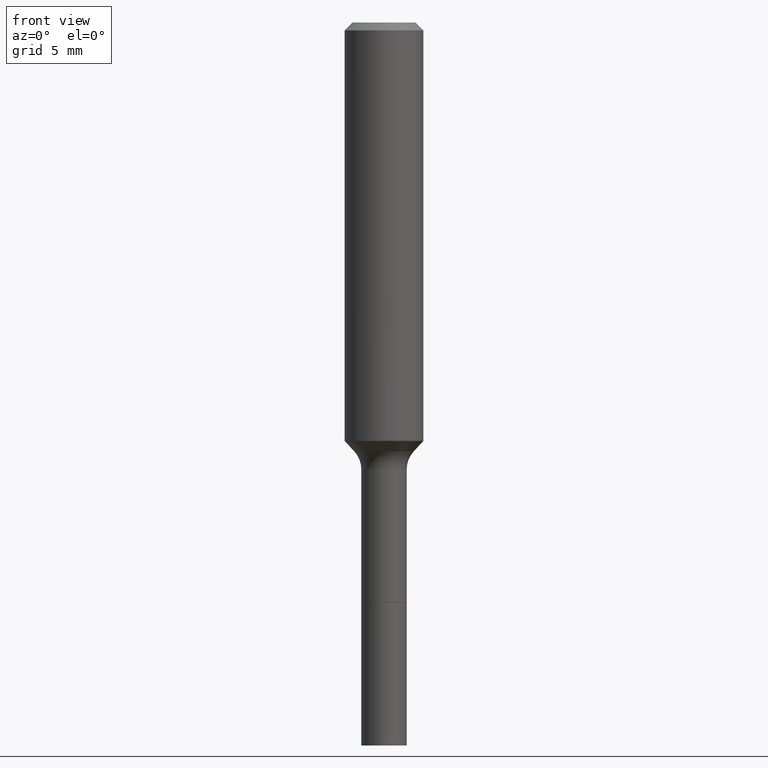
[diagram: clean part render]
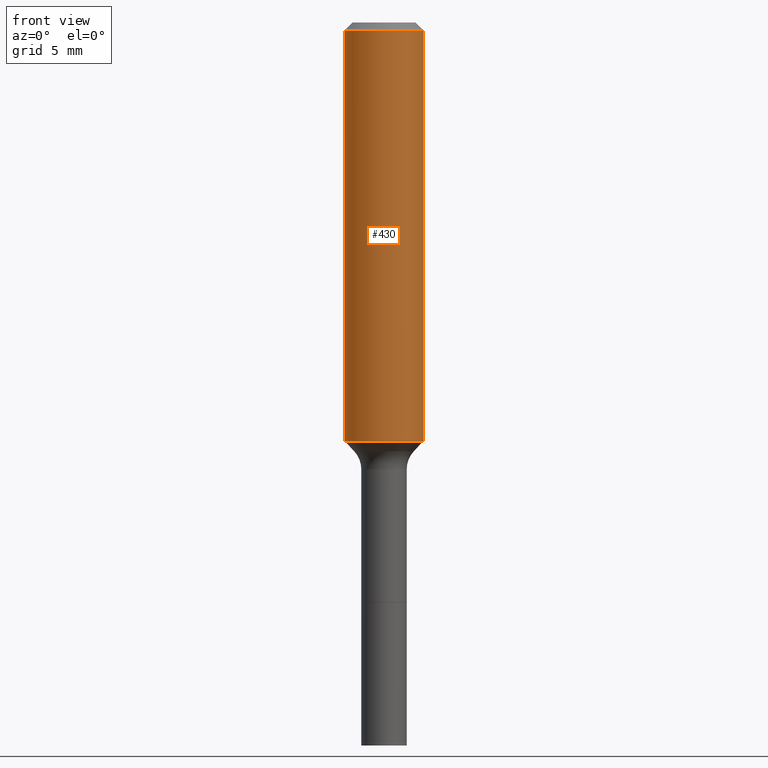
[diagram: same view with one face highlighted and labeled with its STEP entity id]
A machine part, front view. The second image highlights one B-rep face of the part: STEP entity #430.
In plain terms, the highlighted cylindrical surface (partial cylindrical patch) has radius 2.9997 mm, axis along (-0, 0, 1).
Its self-contained STEP definition (entity closure, byte-faithful):
#7 = DIRECTION ( 'NONE',  ( 1.000000000000000000, -6.982962677686264344E-15, 0.000000000000000000 ) ) ;
#18 = CARTESIAN_POINT ( 'NONE',  ( 0.1180999999999999966, -9.071566814582237199E-16, -0.02362000000000014435 ) ) ;
#21 = VERTEX_POINT ( 'NONE', #48 ) ;
#32 = ORIENTED_EDGE ( 'NONE', *, *, #78, .F. ) ;
#46 = ORIENTED_EDGE ( 'NONE', *, *, #502, .F. ) ;
#48 = CARTESIAN_POINT ( 'NONE',  ( -0.1180999999999999966, -1.389778401389283023E-15, -0.02362000000000014435 ) ) ;
#78 = EDGE_CURVE ( 'NONE', #179, #21, #503, .T. ) ;
#99 = VERTEX_POINT ( 'NONE', #18 ) ;
#103 = CARTESIAN_POINT ( 'NONE',  ( -0.1181000000000001354, -3.536238984487769574E-15, -1.253161489578567878 ) ) ;
#135 = CIRCLE ( 'NONE', #381, 0.1180999999999999966 ) ;
#146 = DIRECTION ( 'NONE',  ( -2.445468806185136877E-29, 3.491481338843145188E-15, 1.000000000000000000 ) ) ;
#158 = ORIENTED_EDGE ( 'NONE', *, *, #382, .T. ) ;
#159 = EDGE_CURVE ( 'NONE', #404, #99, #390, .T. ) ;
#179 = VERTEX_POINT ( 'NONE', #103 ) ;
#181 = CARTESIAN_POINT ( 'NONE',  ( -0.1181000000000000660, 8.391509709326787887E-16, -5.809262341591047287E-30 ) ) ;
#199 = VECTOR ( 'NONE', #146, 39.37007874015748143 ) ;
#213 = CARTESIAN_POINT ( 'NONE',  ( 0.1181000000000001354, -5.200077847655198006E-15, -1.253161489578567878 ) ) ;
#216 = CIRCLE ( 'NONE', #337, 0.1181000000000001493 ) ;
#223 = DIRECTION ( 'NONE',  ( -2.445468806185136877E-29, 3.491481338843145188E-15, 1.000000000000000000 ) ) ;
#252 = CYLINDRICAL_SURFACE ( 'NONE', #516, 0.1181000000000000660 ) ;
#280 = CARTESIAN_POINT ( 'NONE',  ( 0.000000000000000000, 0.000000000000000000, 0.000000000000000000 ) ) ;
#318 = CARTESIAN_POINT ( 'NONE',  ( 5.776197320209328408E-31, -8.246878922347560526E-17, -0.02362000000000014435 ) ) ;
#335 = DIRECTION ( 'NONE',  ( -2.445468806185136597E-29, 3.491481338843145583E-15, 1.000000000000000000 ) ) ;
#337 = AXIS2_PLACEMENT_3D ( 'NONE', #374, #512, #7 ) ;
#359 = EDGE_LOOP ( 'NONE', ( #32, #158, #428, #46 ) ) ;
#374 = CARTESIAN_POINT ( 'NONE',  ( 3.064567331876887429E-29, -4.375389955420448954E-15, -1.253161489578567878 ) ) ;
#380 = DIRECTION ( 'NONE',  ( -2.445468806185136597E-29, 3.491481338843145583E-15, 1.000000000000000000 ) ) ;
#381 = AXIS2_PLACEMENT_3D ( 'NONE', #318, #380, #439 ) ;
#382 = EDGE_CURVE ( 'NONE', #179, #404, #216, .T. ) ;
#390 = LINE ( 'NONE', #426, #199 ) ;
#404 = VERTEX_POINT ( 'NONE', #213 ) ;
#426 = CARTESIAN_POINT ( 'NONE',  ( 0.1181000000000000660, -8.246878922347485584E-16, 5.758764772215003944E-30 ) ) ;
#428 = ORIENTED_EDGE ( 'NONE', *, *, #159, .T. ) ;
#430 = ADVANCED_FACE ( 'NONE', ( #490 ), #252, .T. ) ;
#439 = DIRECTION ( 'NONE',  ( 1.000000000000000000, -6.982962677686266711E-15, 0.000000000000000000 ) ) ;
#486 = DIRECTION ( 'NONE',  ( 1.000000000000000000, -6.982962677686266711E-15, 4.876176775795936353E-29 ) ) ;
#490 = FACE_OUTER_BOUND ( 'NONE', #359, .T. ) ;
#502 = EDGE_CURVE ( 'NONE', #21, #99, #135, .T. ) ;
#503 = LINE ( 'NONE', #181, #515 ) ;
#512 = DIRECTION ( 'NONE',  ( -2.445468806185136597E-29, 3.491481338843145583E-15, 1.000000000000000000 ) ) ;
#515 = VECTOR ( 'NONE', #223, 39.37007874015748143 ) ;
#516 = AXIS2_PLACEMENT_3D ( 'NONE', #280, #335, #486 ) ;